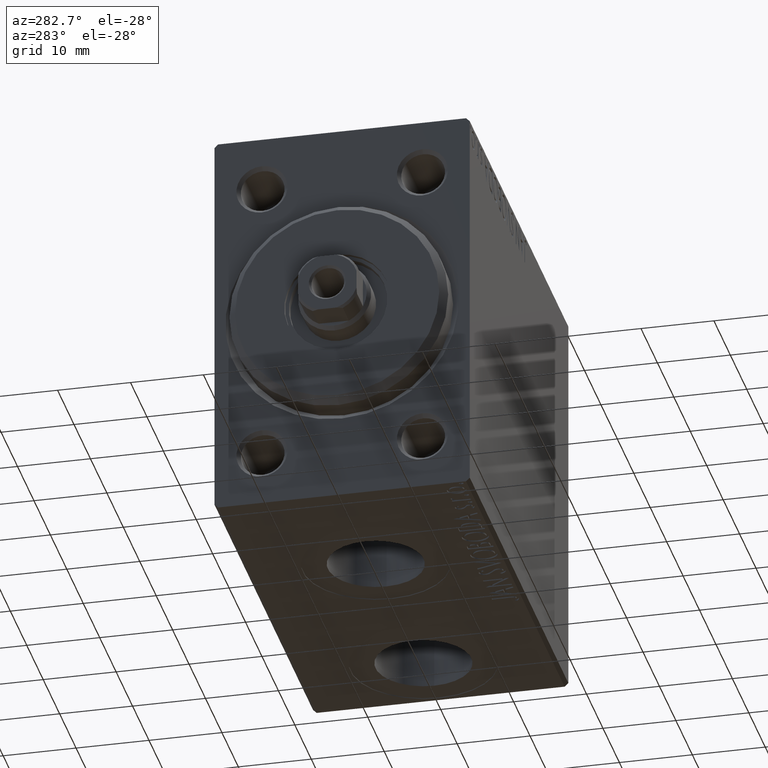
[diagram: clean part render]
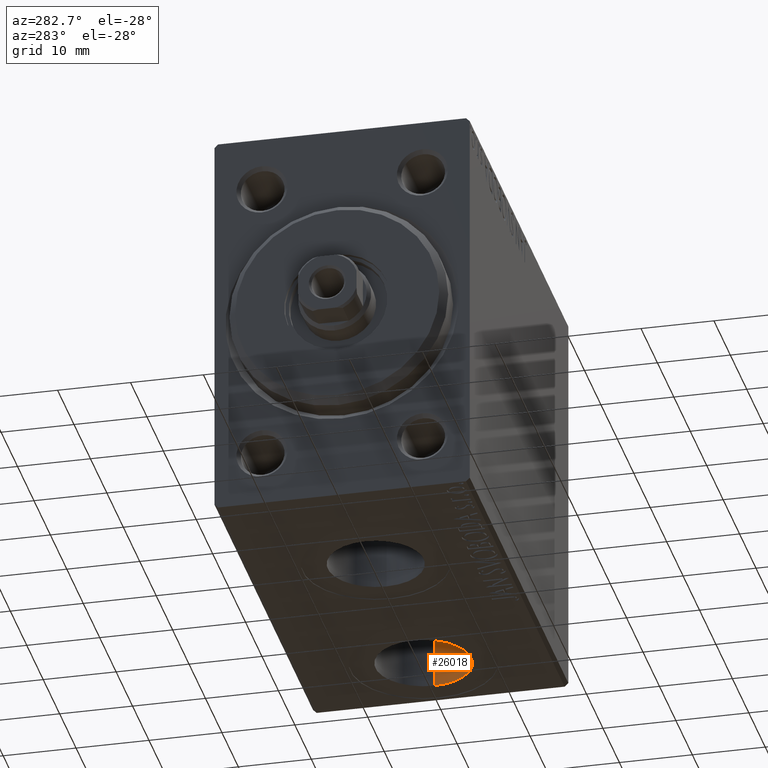
[diagram: same view with one face highlighted and labeled with its STEP entity id]
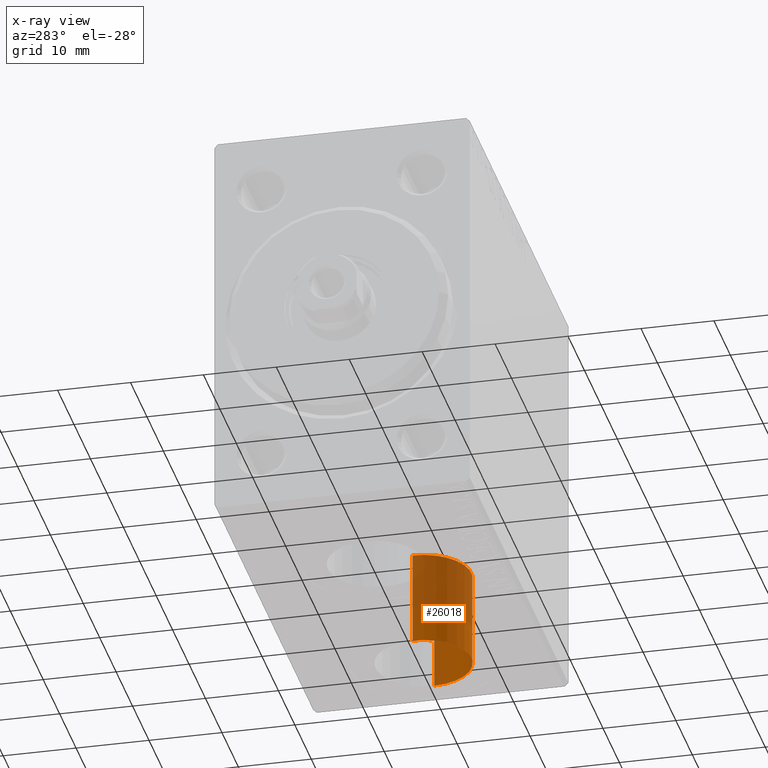
[diagram: x-ray of the same camera — body ghosted, the highlighted face saturated]
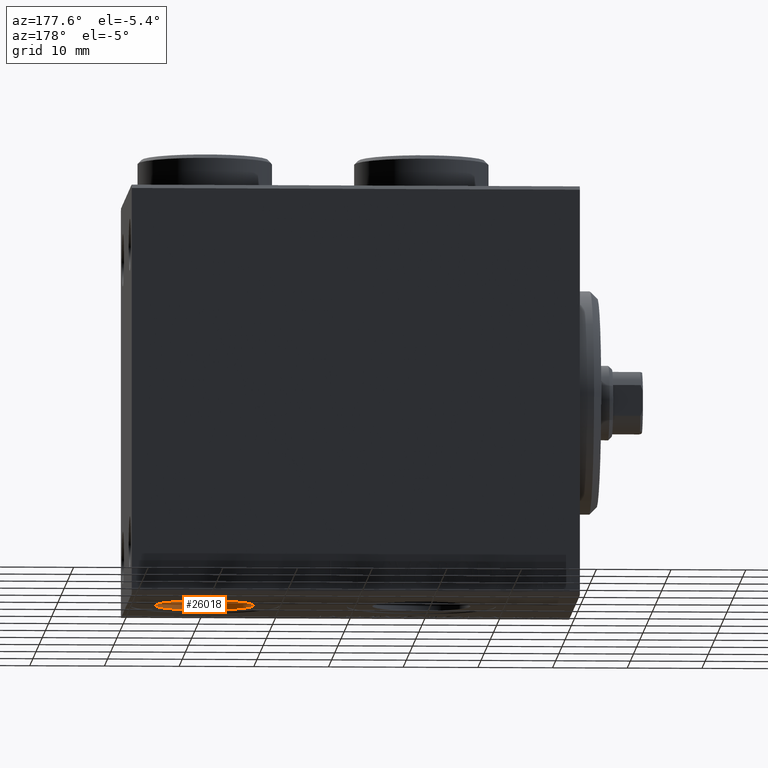
[diagram: same view with one face highlighted and labeled with its STEP entity id]
A machine part, auxiliary view. The second image highlights one B-rep face of the part: STEP entity #26018.
The next image is the same camera in x-ray: the body ghosted, the highlighted face saturated — about 51% of this face is hidden behind the body in this view.
A second angle (auxiliary view) of the same face is appended — the face is thin or edge-on in the first view.
In plain terms, the highlighted cylindrical surface (partial cylindrical patch) has radius 6.58 mm, axis along (-0, -0, -1).
Its self-contained STEP definition (entity closure, byte-faithful):
#1035 = VERTEX_POINT ( 'NONE', #29531 ) ;
#2054 = CARTESIAN_POINT ( 'NONE',  ( 49.49999999999999289, -9.664887937585069901E-15, -27.40000000000000924 ) ) ;
#2815 = CARTESIAN_POINT ( 'NONE',  ( 49.49999999999999289, -9.664887937585069901E-15, -14.50000000000000711 ) ) ;
#4425 = VERTEX_POINT ( 'NONE', #18108 ) ;
#7578 = CIRCLE ( 'NONE', #10529, 6.580000000000002736 ) ;
#10017 = ORIENTED_EDGE ( 'NONE', *, *, #10062, .F. ) ;
#10062 = EDGE_CURVE ( 'NONE', #25532, #19522, #7578, .T. ) ;
#10419 = FACE_OUTER_BOUND ( 'NONE', #36987, .T. ) ;
#10529 = AXIS2_PLACEMENT_3D ( 'NONE', #14473, #25039, #31490 ) ;
#12811 = CARTESIAN_POINT ( 'NONE',  ( 56.07999999999999829, -8.859070343746110859E-15, -14.50000000000000711 ) ) ;
#13026 = EDGE_CURVE ( 'NONE', #25532, #4425, #23117, .T. ) ;
#14319 = EDGE_CURVE ( 'NONE', #19522, #1035, #41039, .T. ) ;
#14473 = CARTESIAN_POINT ( 'NONE',  ( 49.49999999999999289, -9.664887937585069901E-15, -14.50000000000000711 ) ) ;
#16678 = DIRECTION ( 'NONE',  ( -0.000000000000000000, -0.000000000000000000, -1.000000000000000000 ) ) ;
#18108 = CARTESIAN_POINT ( 'NONE',  ( 56.07999999999999829, -8.859070343746110859E-15, -27.40000000000000924 ) ) ;
#19522 = VERTEX_POINT ( 'NONE', #38112 ) ;
#20785 = CYLINDRICAL_SURFACE ( 'NONE', #39560, 6.580000000000002736 ) ;
#23117 = LINE ( 'NONE', #23343, #27527 ) ;
#23228 = DIRECTION ( 'NONE',  ( 0.000000000000000000, 0.000000000000000000, -1.000000000000000000 ) ) ;
#23343 = CARTESIAN_POINT ( 'NONE',  ( 56.07999999999999829, -8.859070343746110859E-15, -14.50000000000000711 ) ) ;
#23397 = ORIENTED_EDGE ( 'NONE', *, *, #42784, .T. ) ;
#25039 = DIRECTION ( 'NONE',  ( 0.000000000000000000, 0.000000000000000000, -1.000000000000000000 ) ) ;
#25161 = AXIS2_PLACEMENT_3D ( 'NONE', #2054, #23228, #37276 ) ;
#25532 = VERTEX_POINT ( 'NONE', #12811 ) ;
#25875 = ORIENTED_EDGE ( 'NONE', *, *, #14319, .F. ) ;
#26018 = ADVANCED_FACE ( 'NONE', ( #10419 ), #20785, .F. ) ;
#27212 = DIRECTION ( 'NONE',  ( -1.000000000000000000, 0.000000000000000000, 0.000000000000000000 ) ) ;
#27388 = CIRCLE ( 'NONE', #25161, 6.580000000000002736 ) ;
#27527 = VECTOR ( 'NONE', #16678, 1000.000000000000000 ) ;
#29531 = CARTESIAN_POINT ( 'NONE',  ( 42.91999999999999460, -9.664887937585069901E-15, -27.40000000000000924 ) ) ;
#31352 = DIRECTION ( 'NONE',  ( -0.000000000000000000, -0.000000000000000000, -1.000000000000000000 ) ) ;
#31490 = DIRECTION ( 'NONE',  ( -1.000000000000000000, 0.000000000000000000, 0.000000000000000000 ) ) ;
#36987 = EDGE_LOOP ( 'NONE', ( #10017, #43788, #23397, #25875 ) ) ;
#37276 = DIRECTION ( 'NONE',  ( -1.000000000000000000, 0.000000000000000000, 0.000000000000000000 ) ) ;
#37814 = CARTESIAN_POINT ( 'NONE',  ( 42.91999999999999460, -9.664887937585069901E-15, -14.50000000000000711 ) ) ;
#38032 = DIRECTION ( 'NONE',  ( -0.000000000000000000, -0.000000000000000000, -1.000000000000000000 ) ) ;
#38112 = CARTESIAN_POINT ( 'NONE',  ( 42.91999999999999460, -9.664887937585069901E-15, -14.50000000000000711 ) ) ;
#39560 = AXIS2_PLACEMENT_3D ( 'NONE', #2815, #31352, #27212 ) ;
#41039 = LINE ( 'NONE', #37814, #42342 ) ;
#42342 = VECTOR ( 'NONE', #38032, 1000.000000000000000 ) ;
#42784 = EDGE_CURVE ( 'NONE', #4425, #1035, #27388, .T. ) ;
#43788 = ORIENTED_EDGE ( 'NONE', *, *, #13026, .T. ) ;